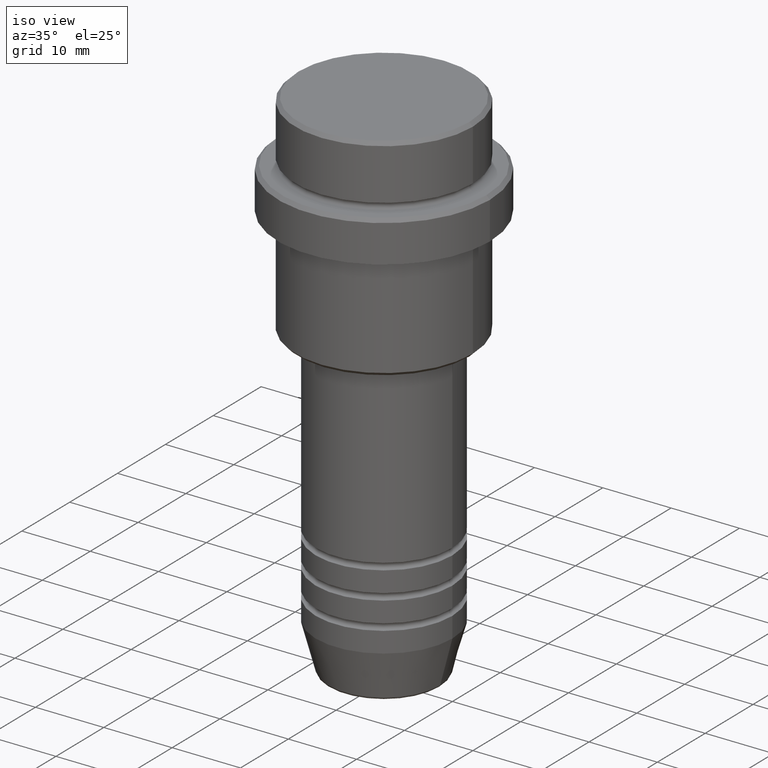
[diagram: clean part render]
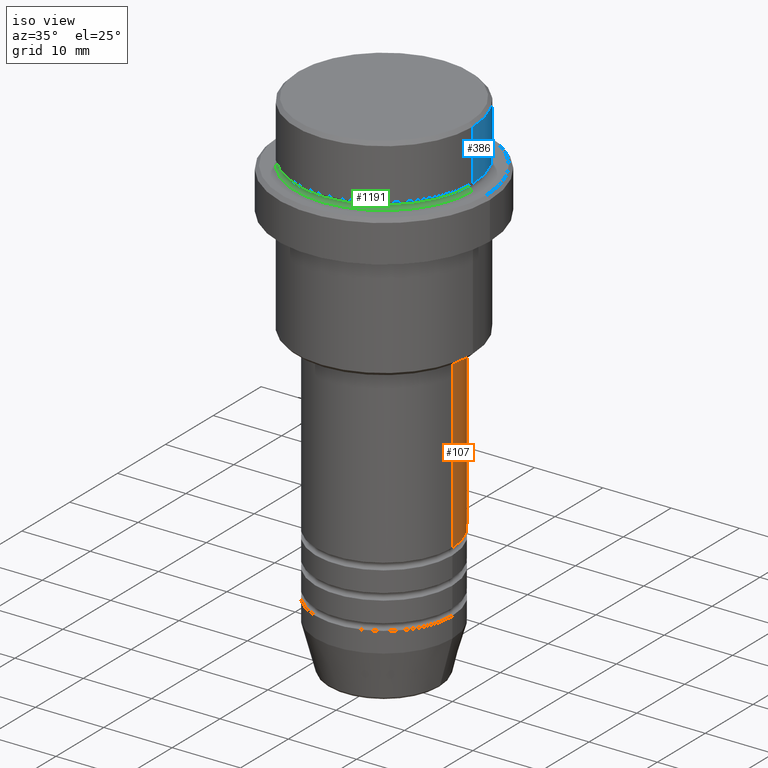
[diagram: same view with three faces highlighted in distinct colors, each labeled with its STEP entity id]
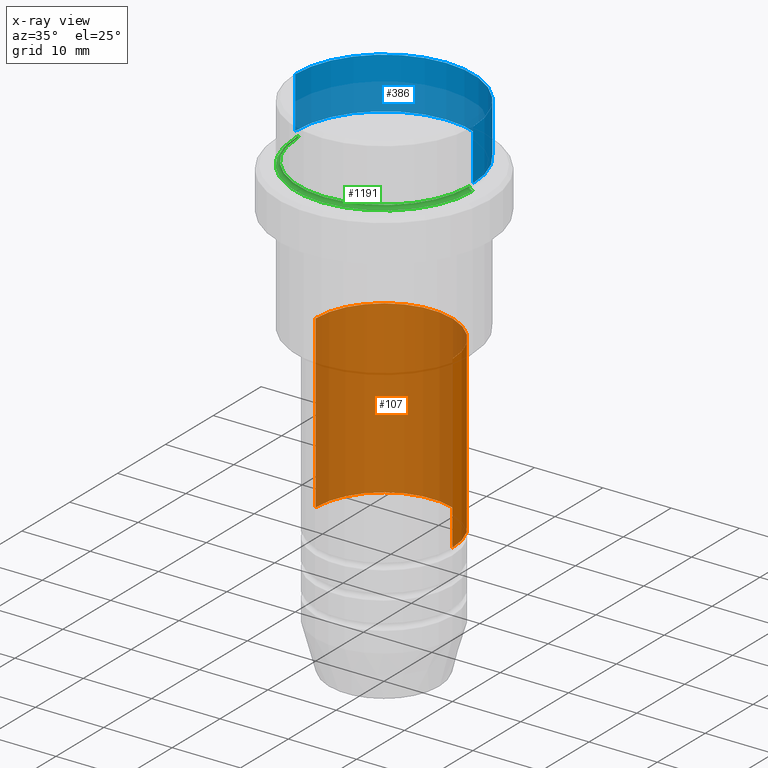
[diagram: x-ray of the same camera — body ghosted, the three highlighted faces saturated]
A machine part, iso view with three faces highlighted in distinct colors.
The next image is the same camera in x-ray (body ghosted, the three faces saturated) — at least one of them is partly hidden behind the body in this view.
Their STEP definitions:

[orange] entity #107 — the highlighted cylindrical surface (partial cylindrical patch) has radius 10 mm, axis along (-0, -0, 1).
#13 = AXIS2_PLACEMENT_3D ( 'NONE', #1297, #629, #1076 ) ;
#55 = CYLINDRICAL_SURFACE ( 'NONE', #323, 10.00000000000000178 ) ;
#76 = CIRCLE ( 'NONE', #13, 10.00000000000000000 ) ;
#92 = ORIENTED_EDGE ( 'NONE', *, *, #692, .F. ) ;
#107 = ADVANCED_FACE ( 'NONE', ( #1271 ), #55, .T. ) ;
#120 = CIRCLE ( 'NONE', #304, 10.00000000000000178 ) ;
#142 = ORIENTED_EDGE ( 'NONE', *, *, #375, .T. ) ;
#153 = DIRECTION ( 'NONE',  ( -0.000000000000000000, -0.000000000000000000, 1.000000000000000000 ) ) ;
#250 = ORIENTED_EDGE ( 'NONE', *, *, #703, .T. ) ;
#304 = AXIS2_PLACEMENT_3D ( 'NONE', #421, #519, #967 ) ;
#323 = AXIS2_PLACEMENT_3D ( 'NONE', #383, #153, #726 ) ;
#337 = CARTESIAN_POINT ( 'NONE',  ( -10.00000000000000178, 1.224646799147353454E-15, 0.000000000000000000 ) ) ;
#362 = ORIENTED_EDGE ( 'NONE', *, *, #1322, .F. ) ;
#375 = EDGE_CURVE ( 'NONE', #657, #1323, #774, .T. ) ;
#383 = CARTESIAN_POINT ( 'NONE',  ( 0.000000000000000000, 0.000000000000000000, 0.000000000000000000 ) ) ;
#401 = CARTESIAN_POINT ( 'NONE',  ( -10.00000000000000000, 1.224646799147353256E-15, -56.99999999999987921 ) ) ;
#421 = CARTESIAN_POINT ( 'NONE',  ( 0.000000000000000000, 0.000000000000000000, -32.00000000000000000 ) ) ;
#429 = LINE ( 'NONE', #534, #620 ) ;
#451 = CARTESIAN_POINT ( 'NONE',  ( 10.00000000000000178, 0.000000000000000000, -32.00000000000000000 ) ) ;
#519 = DIRECTION ( 'NONE',  ( -0.000000000000000000, -0.000000000000000000, 1.000000000000000000 ) ) ;
#534 = CARTESIAN_POINT ( 'NONE',  ( 10.00000000000000178, 0.000000000000000000, 0.000000000000000000 ) ) ;
#570 = DIRECTION ( 'NONE',  ( -0.000000000000000000, -0.000000000000000000, 1.000000000000000000 ) ) ;
#620 = VECTOR ( 'NONE', #971, 1000.000000000000000 ) ;
#629 = DIRECTION ( 'NONE',  ( -0.000000000000000000, -0.000000000000000000, 1.000000000000000000 ) ) ;
#657 = VERTEX_POINT ( 'NONE', #401 ) ;
#692 = EDGE_CURVE ( 'NONE', #1224, #1323, #120, .T. ) ;
#703 = EDGE_CURVE ( 'NONE', #1289, #657, #76, .T. ) ;
#726 = DIRECTION ( 'NONE',  ( 1.000000000000000000, 0.000000000000000000, 0.000000000000000000 ) ) ;
#774 = LINE ( 'NONE', #337, #1148 ) ;
#781 = EDGE_LOOP ( 'NONE', ( #250, #142, #92, #362 ) ) ;
#967 = DIRECTION ( 'NONE',  ( 1.000000000000000000, 0.000000000000000000, 0.000000000000000000 ) ) ;
#971 = DIRECTION ( 'NONE',  ( -0.000000000000000000, -0.000000000000000000, 1.000000000000000000 ) ) ;
#1076 = DIRECTION ( 'NONE',  ( 1.000000000000000000, 0.000000000000000000, 0.000000000000000000 ) ) ;
#1148 = VECTOR ( 'NONE', #570, 1000.000000000000000 ) ;
#1224 = VERTEX_POINT ( 'NONE', #451 ) ;
#1271 = FACE_OUTER_BOUND ( 'NONE', #781, .T. ) ;
#1289 = VERTEX_POINT ( 'NONE', #1317 ) ;
#1297 = CARTESIAN_POINT ( 'NONE',  ( 0.000000000000000000, 0.000000000000000000, -56.99999999999987921 ) ) ;
#1317 = CARTESIAN_POINT ( 'NONE',  ( 10.00000000000000000, 0.000000000000000000, -56.99999999999987921 ) ) ;
#1322 = EDGE_CURVE ( 'NONE', #1289, #1224, #429, .T. ) ;
#1323 = VERTEX_POINT ( 'NONE', #1416 ) ;
#1416 = CARTESIAN_POINT ( 'NONE',  ( -10.00000000000000178, 1.224646799147353454E-15, -32.00000000000000000 ) ) ;

[blue] entity #386 — the highlighted cylindrical surface (partial cylindrical patch) has radius 13 mm, axis along (-0, -0, 1).
#6 = VERTEX_POINT ( 'NONE', #880 ) ;
#11 = VECTOR ( 'NONE', #623, 1000.000000000000000 ) ;
#32 = CARTESIAN_POINT ( 'NONE',  ( 0.000000000000000000, 0.000000000000000000, 0.000000000000000000 ) ) ;
#78 = LINE ( 'NONE', #194, #11 ) ;
#144 = ORIENTED_EDGE ( 'NONE', *, *, #347, .T. ) ;
#181 = VERTEX_POINT ( 'NONE', #958 ) ;
#186 = EDGE_CURVE ( 'NONE', #181, #346, #1011, .T. ) ;
#194 = CARTESIAN_POINT ( 'NONE',  ( 12.99999999999999822, 0.000000000000000000, 0.000000000000000000 ) ) ;
#248 = CYLINDRICAL_SURFACE ( 'NONE', #548, 12.99999999999999822 ) ;
#276 = EDGE_CURVE ( 'NONE', #181, #6, #78, .T. ) ;
#335 = ORIENTED_EDGE ( 'NONE', *, *, #276, .F. ) ;
#346 = VERTEX_POINT ( 'NONE', #649 ) ;
#347 = EDGE_CURVE ( 'NONE', #346, #1180, #1124, .T. ) ;
#358 = EDGE_LOOP ( 'NONE', ( #972, #144, #1122, #335 ) ) ;
#386 = ADVANCED_FACE ( 'NONE', ( #1005 ), #248, .T. ) ;
#426 = CARTESIAN_POINT ( 'NONE',  ( -12.99999999999999822, 1.592040838891558898E-15, -0.5000000000000038858 ) ) ;
#512 = CARTESIAN_POINT ( 'NONE',  ( 0.000000000000000000, 0.000000000000000000, -7.999999999999998224 ) ) ;
#548 = AXIS2_PLACEMENT_3D ( 'NONE', #32, #999, #678 ) ;
#623 = DIRECTION ( 'NONE',  ( -0.000000000000000000, -0.000000000000000000, 1.000000000000000000 ) ) ;
#640 = CIRCLE ( 'NONE', #1040, 12.99999999999999822 ) ;
#649 = CARTESIAN_POINT ( 'NONE',  ( -12.99999999999999822, 1.592040838891558898E-15, -7.999999999999998224 ) ) ;
#663 = CARTESIAN_POINT ( 'NONE',  ( 0.000000000000000000, 0.000000000000000000, -0.5000000000000038858 ) ) ;
#678 = DIRECTION ( 'NONE',  ( 1.000000000000000000, 0.000000000000000000, 0.000000000000000000 ) ) ;
#838 = EDGE_CURVE ( 'NONE', #1180, #6, #640, .T. ) ;
#880 = CARTESIAN_POINT ( 'NONE',  ( 12.99999999999999822, 0.000000000000000000, -0.5000000000000038858 ) ) ;
#958 = CARTESIAN_POINT ( 'NONE',  ( 12.99999999999999822, 0.000000000000000000, -7.999999999999998224 ) ) ;
#960 = VECTOR ( 'NONE', #1344, 1000.000000000000000 ) ;
#972 = ORIENTED_EDGE ( 'NONE', *, *, #186, .T. ) ;
#999 = DIRECTION ( 'NONE',  ( -0.000000000000000000, -0.000000000000000000, 1.000000000000000000 ) ) ;
#1005 = FACE_OUTER_BOUND ( 'NONE', #358, .T. ) ;
#1011 = CIRCLE ( 'NONE', #1106, 12.99999999999999822 ) ;
#1040 = AXIS2_PLACEMENT_3D ( 'NONE', #663, #1343, #1123 ) ;
#1106 = AXIS2_PLACEMENT_3D ( 'NONE', #512, #1174, #1192 ) ;
#1122 = ORIENTED_EDGE ( 'NONE', *, *, #838, .T. ) ;
#1123 = DIRECTION ( 'NONE',  ( 1.000000000000000000, 0.000000000000000000, 0.000000000000000000 ) ) ;
#1124 = LINE ( 'NONE', #1321, #960 ) ;
#1174 = DIRECTION ( 'NONE',  ( -0.000000000000000000, -0.000000000000000000, 1.000000000000000000 ) ) ;
#1180 = VERTEX_POINT ( 'NONE', #426 ) ;
#1192 = DIRECTION ( 'NONE',  ( 1.000000000000000000, 0.000000000000000000, 0.000000000000000000 ) ) ;
#1321 = CARTESIAN_POINT ( 'NONE',  ( -12.99999999999999822, 1.592040838891558898E-15, 0.000000000000000000 ) ) ;
#1343 = DIRECTION ( 'NONE',  ( 0.000000000000000000, 0.000000000000000000, -1.000000000000000000 ) ) ;
#1344 = DIRECTION ( 'NONE',  ( -0.000000000000000000, -0.000000000000000000, 1.000000000000000000 ) ) ;

[green] entity #1191 — the highlighted toroidal blend (fillet) surface has major radius 13 mm and minor (blend) radius 0.5 mm.
#8 = VERTEX_POINT ( 'NONE', #1328 ) ;
#14 = CIRCLE ( 'NONE', #422, 0.5000000000000004441 ) ;
#16 = DIRECTION ( 'NONE',  ( 1.000000000000000000, 0.000000000000000000, 0.000000000000000000 ) ) ;
#96 = AXIS2_PLACEMENT_3D ( 'NONE', #998, #349, #786 ) ;
#106 = ORIENTED_EDGE ( 'NONE', *, *, #1161, .T. ) ;
#214 = AXIS2_PLACEMENT_3D ( 'NONE', #1296, #605, #1392 ) ;
#223 = DIRECTION ( 'NONE',  ( 0.000000000000000000, 0.000000000000000000, -1.000000000000000000 ) ) ;
#226 = VERTEX_POINT ( 'NONE', #614 ) ;
#291 = FACE_OUTER_BOUND ( 'NONE', #974, .T. ) ;
#320 = VERTEX_POINT ( 'NONE', #795 ) ;
#336 = CARTESIAN_POINT ( 'NONE',  ( 12.99999999999999467, 0.000000000000000000, -8.499999999999998224 ) ) ;
#349 = DIRECTION ( 'NONE',  ( 0.000000000000000000, 0.000000000000000000, -1.000000000000000000 ) ) ;
#422 = AXIS2_PLACEMENT_3D ( 'NONE', #336, #1205, #223 ) ;
#460 = DIRECTION ( 'NONE',  ( -0.000000000000000000, -0.000000000000000000, 1.000000000000000000 ) ) ;
#476 = CARTESIAN_POINT ( 'NONE',  ( 12.49999999999999289, 0.000000000000000000, -8.499999999999998224 ) ) ;
#556 = CARTESIAN_POINT ( 'NONE',  ( 0.000000000000000000, 0.000000000000000000, -8.499999999999998224 ) ) ;
#605 = DIRECTION ( 'NONE',  ( 1.224646799147353207E-16, 1.000000000000000000, 0.000000000000000000 ) ) ;
#614 = CARTESIAN_POINT ( 'NONE',  ( 12.99999999999999467, 0.000000000000000000, -9.000000000000000000 ) ) ;
#651 = ORIENTED_EDGE ( 'NONE', *, *, #1238, .F. ) ;
#666 = AXIS2_PLACEMENT_3D ( 'NONE', #669, #460, #770 ) ;
#669 = CARTESIAN_POINT ( 'NONE',  ( 0.000000000000000000, 0.000000000000000000, -8.499999999999998224 ) ) ;
#717 = CIRCLE ( 'NONE', #214, 0.5000000000000004441 ) ;
#752 = EDGE_CURVE ( 'NONE', #226, #8, #1339, .T. ) ;
#770 = DIRECTION ( 'NONE',  ( 1.000000000000000000, 0.000000000000000000, 0.000000000000000000 ) ) ;
#786 = DIRECTION ( 'NONE',  ( 1.000000000000000000, 0.000000000000000000, 0.000000000000000000 ) ) ;
#795 = CARTESIAN_POINT ( 'NONE',  ( -12.49999999999999289, 1.561424668912874519E-15, -8.499999999999998224 ) ) ;
#823 = ORIENTED_EDGE ( 'NONE', *, *, #904, .F. ) ;
#836 = CIRCLE ( 'NONE', #666, 12.49999999999999289 ) ;
#904 = EDGE_CURVE ( 'NONE', #1004, #226, #14, .T. ) ;
#974 = EDGE_LOOP ( 'NONE', ( #651, #106, #1248, #823 ) ) ;
#997 = DIRECTION ( 'NONE',  ( -0.000000000000000000, -0.000000000000000000, 1.000000000000000000 ) ) ;
#998 = CARTESIAN_POINT ( 'NONE',  ( 0.000000000000000000, 0.000000000000000000, -9.000000000000000000 ) ) ;
#1004 = VERTEX_POINT ( 'NONE', #476 ) ;
#1063 = AXIS2_PLACEMENT_3D ( 'NONE', #556, #997, #16 ) ;
#1134 = TOROIDAL_SURFACE ( 'NONE', #1063, 12.99999999999999467, 0.5000000000000000000 ) ;
#1161 = EDGE_CURVE ( 'NONE', #320, #8, #717, .T. ) ;
#1191 = ADVANCED_FACE ( 'NONE', ( #291 ), #1134, .F. ) ;
#1205 = DIRECTION ( 'NONE',  ( 0.000000000000000000, -1.000000000000000000, 0.000000000000000000 ) ) ;
#1238 = EDGE_CURVE ( 'NONE', #320, #1004, #836, .T. ) ;
#1248 = ORIENTED_EDGE ( 'NONE', *, *, #752, .F. ) ;
#1296 = CARTESIAN_POINT ( 'NONE',  ( -12.99999999999999467, 1.592040838891558504E-15, -8.499999999999998224 ) ) ;
#1328 = CARTESIAN_POINT ( 'NONE',  ( -12.99999999999999467, 1.592040838891558504E-15, -9.000000000000000000 ) ) ;
#1339 = CIRCLE ( 'NONE', #96, 12.99999999999999467 ) ;
#1392 = DIRECTION ( 'NONE',  ( -1.000000000000000000, 1.224646799147353454E-16, 0.000000000000000000 ) ) ;